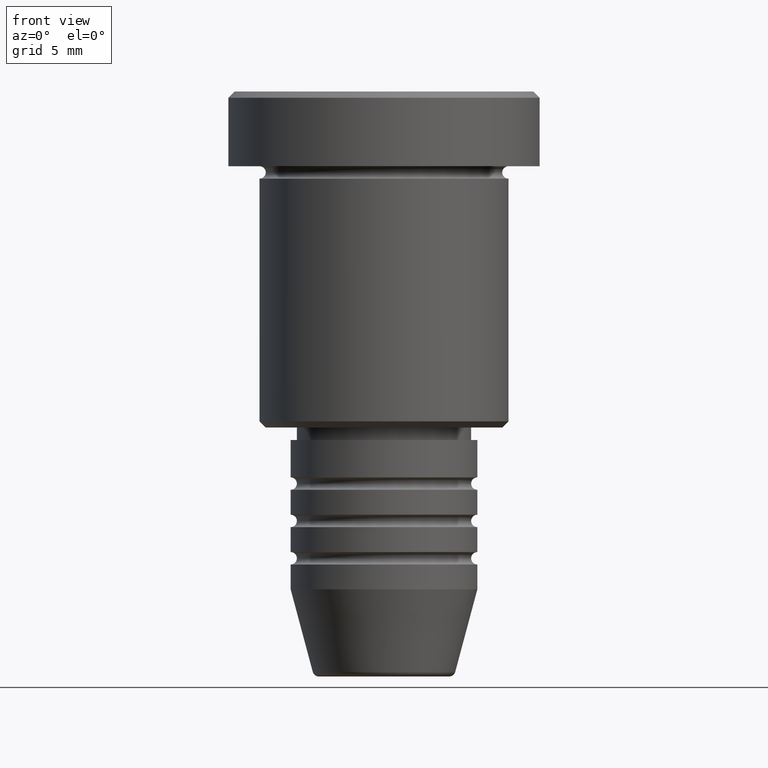
[diagram: clean part render]
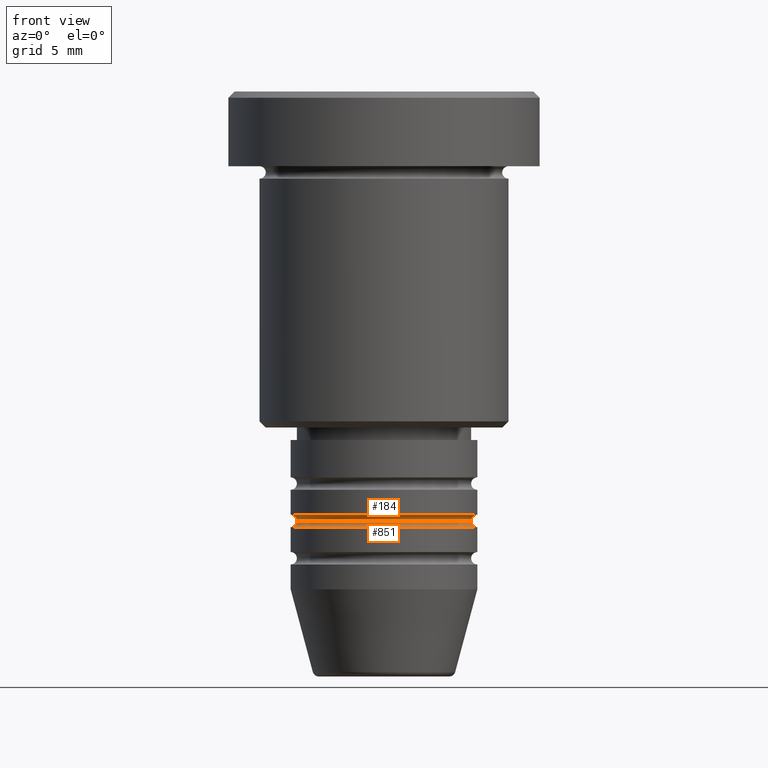
[diagram: same view with one multi-face feature highlighted, each face labeled with its STEP entity id]
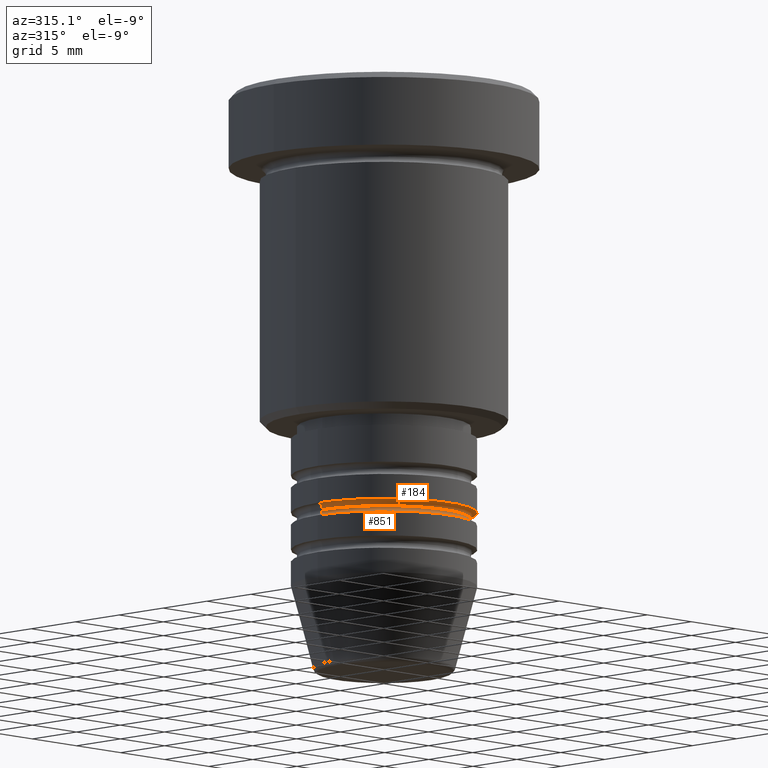
[diagram: same view with one multi-face feature highlighted, each face labeled with its STEP entity id]
A machine part, front view. The highlighted faces form ONE feature: a constant-radius fillet chain: 2 tangent blend faces with common blend radius 0.5 mm. The faces share edges in the B-rep.
A second angle (auxiliary view) of the same feature is appended — it is thin or edge-on in the first view.
Their STEP definitions:
[1] entity #851 (Torus):
#7 = EDGE_CURVE ( 'NONE', #1162, #676, #447, .T. ) ;
#13 = CIRCLE ( 'NONE', #1093, 0.5000000000000004441 ) ;
#20 = DIRECTION ( 'NONE',  ( 0.000000000000000000, -1.000000000000000000, 0.000000000000000000 ) ) ;
#119 = DIRECTION ( 'NONE',  ( 1.224646799147353207E-16, 1.000000000000000000, 0.000000000000000000 ) ) ;
#136 = DIRECTION ( 'NONE',  ( -0.000000000000000000, -0.000000000000000000, 1.000000000000000000 ) ) ;
#145 = CARTESIAN_POINT ( 'NONE',  ( 6.999999999999999112, 0.000000000000000000, -34.49999999999998579 ) ) ;
#151 = CARTESIAN_POINT ( 'NONE',  ( -7.500000000000000000, 9.184850993605147944E-16, -34.99999999999999289 ) ) ;
#172 = DIRECTION ( 'NONE',  ( -0.000000000000000000, -0.000000000000000000, 1.000000000000000000 ) ) ;
#173 = ORIENTED_EDGE ( 'NONE', *, *, #1143, .T. ) ;
#223 = CARTESIAN_POINT ( 'NONE',  ( 0.000000000000000000, 0.000000000000000000, -34.99999999999999289 ) ) ;
#246 = DIRECTION ( 'NONE',  ( 1.000000000000000000, 0.000000000000000000, 0.000000000000000000 ) ) ;
#249 = VERTEX_POINT ( 'NONE', #151 ) ;
#276 = CARTESIAN_POINT ( 'NONE',  ( 7.500000000000000000, 0.000000000000000000, -34.99999999999999289 ) ) ;
#299 = TOROIDAL_SURFACE ( 'NONE', #358, 7.500000000000000000, 0.5000000000000000000 ) ;
#315 = AXIS2_PLACEMENT_3D ( 'NONE', #223, #136, #507 ) ;
#358 = AXIS2_PLACEMENT_3D ( 'NONE', #988, #692, #246 ) ;
#359 = CARTESIAN_POINT ( 'NONE',  ( 0.000000000000000000, 0.000000000000000000, -34.49999999999998579 ) ) ;
#366 = ORIENTED_EDGE ( 'NONE', *, *, #687, .F. ) ;
#419 = EDGE_LOOP ( 'NONE', ( #446, #789, #173, #366 ) ) ;
#446 = ORIENTED_EDGE ( 'NONE', *, *, #7, .F. ) ;
#447 = CIRCLE ( 'NONE', #923, 6.999999999999999112 ) ;
#478 = CARTESIAN_POINT ( 'NONE',  ( -7.500000000000000000, 9.184850993605147944E-16, -34.49999999999998579 ) ) ;
#507 = DIRECTION ( 'NONE',  ( 1.000000000000000000, 0.000000000000000000, 0.000000000000000000 ) ) ;
#634 = DIRECTION ( 'NONE',  ( 1.000000000000000000, 0.000000000000000000, 0.000000000000000000 ) ) ;
#655 = EDGE_CURVE ( 'NONE', #1162, #249, #1049, .T. ) ;
#676 = VERTEX_POINT ( 'NONE', #145 ) ;
#687 = EDGE_CURVE ( 'NONE', #676, #898, #13, .T. ) ;
#692 = DIRECTION ( 'NONE',  ( -0.000000000000000000, -0.000000000000000000, 1.000000000000000000 ) ) ;
#786 = FACE_OUTER_BOUND ( 'NONE', #419, .T. ) ;
#789 = ORIENTED_EDGE ( 'NONE', *, *, #655, .T. ) ;
#837 = CARTESIAN_POINT ( 'NONE',  ( 7.500000000000000000, 0.000000000000000000, -34.49999999999998579 ) ) ;
#843 = CARTESIAN_POINT ( 'NONE',  ( -6.999999999999999112, 8.878689293818310074E-16, -34.49999999999998579 ) ) ;
#851 = ADVANCED_FACE ( 'NONE', ( #786 ), #299, .F. ) ;
#898 = VERTEX_POINT ( 'NONE', #276 ) ;
#923 = AXIS2_PLACEMENT_3D ( 'NONE', #359, #172, #634 ) ;
#981 = AXIS2_PLACEMENT_3D ( 'NONE', #478, #119, #1042 ) ;
#988 = CARTESIAN_POINT ( 'NONE',  ( 0.000000000000000000, 0.000000000000000000, -34.49999999999998579 ) ) ;
#1021 = DIRECTION ( 'NONE',  ( 0.000000000000000000, 0.000000000000000000, -1.000000000000000000 ) ) ;
#1042 = DIRECTION ( 'NONE',  ( -1.000000000000000000, 1.224646799147353454E-16, 0.000000000000000000 ) ) ;
#1049 = CIRCLE ( 'NONE', #981, 0.5000000000000004441 ) ;
#1093 = AXIS2_PLACEMENT_3D ( 'NONE', #837, #20, #1021 ) ;
#1128 = CIRCLE ( 'NONE', #315, 7.500000000000000000 ) ;
#1143 = EDGE_CURVE ( 'NONE', #249, #898, #1128, .T. ) ;
#1162 = VERTEX_POINT ( 'NONE', #843 ) ;
[2] entity #184 (Torus):
#7 = EDGE_CURVE ( 'NONE', #1162, #676, #447, .T. ) ;
#10 = DIRECTION ( 'NONE',  ( -0.000000000000000000, -1.000000000000000000, -0.000000000000000000 ) ) ;
#145 = CARTESIAN_POINT ( 'NONE',  ( 6.999999999999999112, 0.000000000000000000, -34.49999999999998579 ) ) ;
#172 = DIRECTION ( 'NONE',  ( -0.000000000000000000, -0.000000000000000000, 1.000000000000000000 ) ) ;
#184 = ADVANCED_FACE ( 'NONE', ( #1039 ), #730, .F. ) ;
#186 = AXIS2_PLACEMENT_3D ( 'NONE', #372, #10, #289 ) ;
#236 = DIRECTION ( 'NONE',  ( 0.000000000000000000, 0.000000000000000000, -1.000000000000000000 ) ) ;
#257 = CARTESIAN_POINT ( 'NONE',  ( 0.000000000000000000, 0.000000000000000000, -33.99999999999997868 ) ) ;
#289 = DIRECTION ( 'NONE',  ( 0.000000000000000000, 0.000000000000000000, -1.000000000000000000 ) ) ;
#306 = EDGE_CURVE ( 'NONE', #458, #853, #691, .T. ) ;
#359 = CARTESIAN_POINT ( 'NONE',  ( 0.000000000000000000, 0.000000000000000000, -34.49999999999998579 ) ) ;
#372 = CARTESIAN_POINT ( 'NONE',  ( -7.500000000000000000, 0.000000000000000000, -34.49999999999997868 ) ) ;
#423 = EDGE_LOOP ( 'NONE', ( #1050, #673, #542, #720 ) ) ;
#428 = AXIS2_PLACEMENT_3D ( 'NONE', #568, #510, #743 ) ;
#447 = CIRCLE ( 'NONE', #923, 6.999999999999999112 ) ;
#458 = VERTEX_POINT ( 'NONE', #909 ) ;
#510 = DIRECTION ( 'NONE',  ( -1.224646799147353207E-16, 1.000000000000000000, 0.000000000000000000 ) ) ;
#542 = ORIENTED_EDGE ( 'NONE', *, *, #306, .F. ) ;
#568 = CARTESIAN_POINT ( 'NONE',  ( 7.500000000000000000, 9.184850993605147944E-16, -34.49999999999997868 ) ) ;
#588 = EDGE_CURVE ( 'NONE', #676, #853, #1148, .T. ) ;
#601 = DIRECTION ( 'NONE',  ( -1.000000000000000000, 0.000000000000000000, 0.000000000000000000 ) ) ;
#609 = CARTESIAN_POINT ( 'NONE',  ( 7.500000000000000000, 0.000000000000000000, -33.99999999999997868 ) ) ;
#634 = DIRECTION ( 'NONE',  ( 1.000000000000000000, 0.000000000000000000, 0.000000000000000000 ) ) ;
#673 = ORIENTED_EDGE ( 'NONE', *, *, #588, .T. ) ;
#676 = VERTEX_POINT ( 'NONE', #145 ) ;
#691 = CIRCLE ( 'NONE', #762, 7.500000000000000000 ) ;
#720 = ORIENTED_EDGE ( 'NONE', *, *, #917, .F. ) ;
#730 = TOROIDAL_SURFACE ( 'NONE', #1031, 7.500000000000000000, 0.5000000000000000000 ) ;
#743 = DIRECTION ( 'NONE',  ( -1.000000000000000000, -1.224646799147351482E-16, 0.000000000000000000 ) ) ;
#762 = AXIS2_PLACEMENT_3D ( 'NONE', #257, #1047, #1044 ) ;
#843 = CARTESIAN_POINT ( 'NONE',  ( -6.999999999999999112, 8.878689293818310074E-16, -34.49999999999998579 ) ) ;
#853 = VERTEX_POINT ( 'NONE', #609 ) ;
#909 = CARTESIAN_POINT ( 'NONE',  ( -7.500000000000000000, 9.184850993605147944E-16, -33.99999999999997868 ) ) ;
#917 = EDGE_CURVE ( 'NONE', #1162, #458, #1177, .T. ) ;
#923 = AXIS2_PLACEMENT_3D ( 'NONE', #359, #172, #634 ) ;
#1031 = AXIS2_PLACEMENT_3D ( 'NONE', #1116, #236, #601 ) ;
#1039 = FACE_OUTER_BOUND ( 'NONE', #423, .T. ) ;
#1044 = DIRECTION ( 'NONE',  ( 1.000000000000000000, 0.000000000000000000, 0.000000000000000000 ) ) ;
#1047 = DIRECTION ( 'NONE',  ( -0.000000000000000000, -0.000000000000000000, 1.000000000000000000 ) ) ;
#1050 = ORIENTED_EDGE ( 'NONE', *, *, #7, .T. ) ;
#1116 = CARTESIAN_POINT ( 'NONE',  ( 0.000000000000000000, 0.000000000000000000, -34.49999999999997868 ) ) ;
#1148 = CIRCLE ( 'NONE', #428, 0.5000000000000004441 ) ;
#1162 = VERTEX_POINT ( 'NONE', #843 ) ;
#1177 = CIRCLE ( 'NONE', #186, 0.5000000000000004441 ) ;